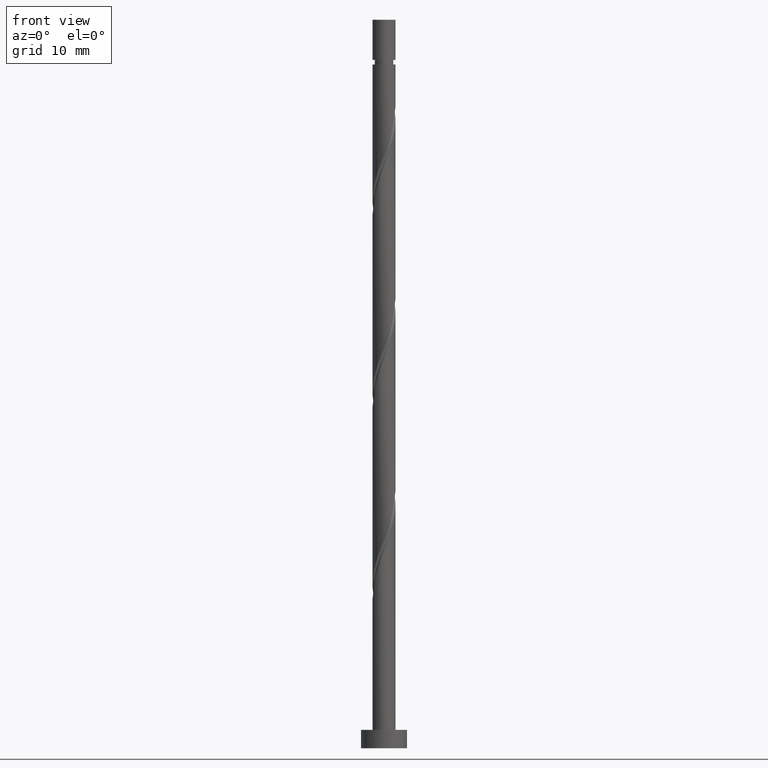
[diagram: clean part render]
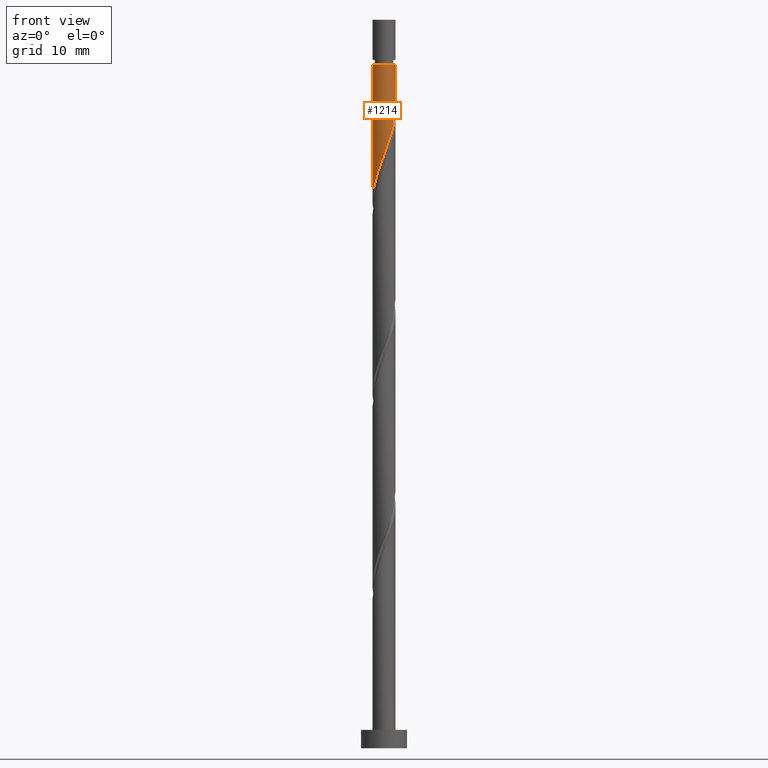
[diagram: same view with one face highlighted and labeled with its STEP entity id]
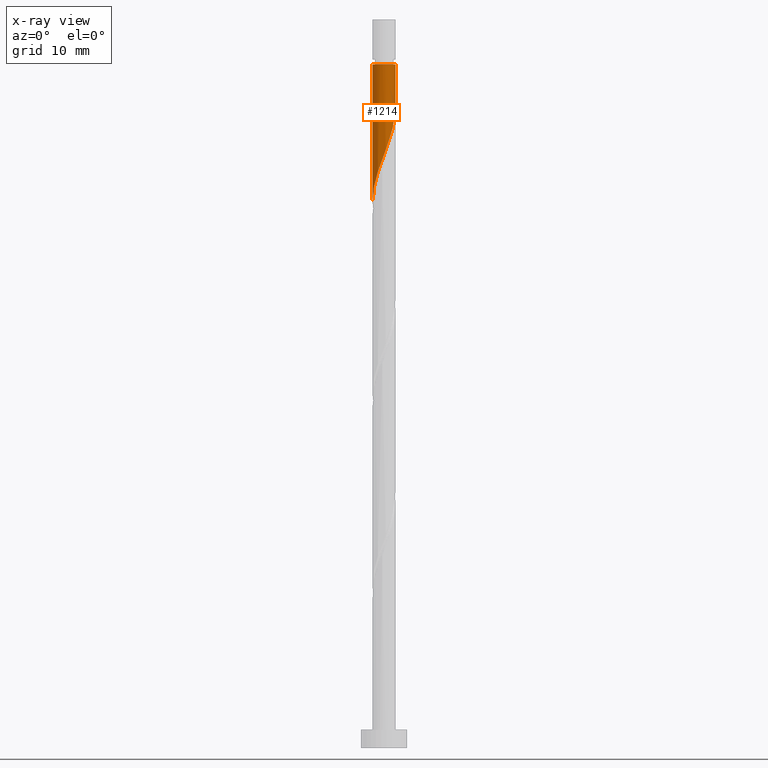
[diagram: x-ray of the same camera — body ghosted, the highlighted face saturated]
A machine part, front view. The second image highlights one B-rep face of the part: STEP entity #1214.
The next image is the same camera in x-ray: the body ghosted, the highlighted face saturated — about 0% of this face is hidden behind the body in this view.
In plain terms, the highlighted cylindrical surface (edge-blend (fillet) strip) has radius 1.25 mm, axis along (-0, -0, -1).
Its self-contained STEP definition (entity closure, byte-faithful):
#5 = CARTESIAN_POINT ( 'NONE',  ( 0.000000000000000000, 0.000000000000000000, 74.14834057756156938 ) ) ;
#22 = ORIENTED_EDGE ( 'NONE', *, *, #128, .F. ) ;
#57 = ORIENTED_EDGE ( 'NONE', *, *, #863, .F. ) ;
#63 = AXIS2_PLACEMENT_3D ( 'NONE', #486, #1331, #101 ) ;
#99 = VERTEX_POINT ( 'NONE', #940 ) ;
#101 = DIRECTION ( 'NONE',  ( -1.000000000000000000, 0.000000000000000000, 0.000000000000000000 ) ) ;
#128 = EDGE_CURVE ( 'NONE', #1133, #99, #613, .T. ) ;
#165 = VECTOR ( 'NONE', #1384, 1000.000000000000000 ) ;
#201 = CARTESIAN_POINT ( 'NONE',  ( 1.249999999999999778, -0.1256297269074000689, 69.27050511029065660 ) ) ;
#216 = CARTESIAN_POINT ( 'NONE',  ( 1.185602367910980393, -0.4427677986742116767, 68.41917391089489797 ) ) ;
#225 = CARTESIAN_POINT ( 'NONE',  ( -1.137255553546199227, -0.5187964976060721600, 60.60667391089489797 ) ) ;
#242 = LINE ( 'NONE', #1088, #1383 ) ;
#244 = CARTESIAN_POINT ( 'NONE',  ( -0.05472591987909793815, -1.264397632089018675, 64.25250724422822657 ) ) ;
#281 = EDGE_LOOP ( 'NONE', ( #57, #1363, #287, #22 ) ) ;
#287 = ORIENTED_EDGE ( 'NONE', *, *, #385, .T. ) ;
#351 = CARTESIAN_POINT ( 'NONE',  ( -0.4427677986742115657, -1.185602367910980393, 63.21084057756155516 ) ) ;
#371 = CIRCLE ( 'NONE', #1110, 1.250000000000002887 ) ;
#379 = DIRECTION ( 'NONE',  ( -1.000000000000000000, 0.000000000000000000, 0.000000000000000000 ) ) ;
#385 = EDGE_CURVE ( 'NONE', #1266, #99, #242, .T. ) ;
#406 = EDGE_CURVE ( 'NONE', #1274, #1266, #371, .T. ) ;
#486 = CARTESIAN_POINT ( 'NONE',  ( 0.000000000000000000, 0.000000000000000000, 79.00000000000000000 ) ) ;
#496 = DIRECTION ( 'NONE',  ( -0.000000000000000000, -0.000000000000000000, -1.000000000000000000 ) ) ;
#519 = CARTESIAN_POINT ( 'NONE',  ( -1.055086260630531791, -0.6989200819604575177, 61.12750724422822657 ) ) ;
#590 = CARTESIAN_POINT ( 'NONE',  ( -1.250000000000000000, -0.07121717180803825709, 59.37765410823910628 ) ) ;
#608 = CARTESIAN_POINT ( 'NONE',  ( -0.2487468592766548803, -1.224999999999999867, 63.73167391089491929 ) ) ;
#613 =( BOUNDED_CURVE ( )  B_SPLINE_CURVE ( 2, ( #821, #201, #697, #216, #1182, #1418, #948, #1512, #1425, #917, #1124, #244, #608, #351, #1369, #1196, #857, #519, #225, #1089, #888, #590, #730 ),
 .UNSPECIFIED., .F., .T. ) 
 B_SPLINE_CURVE_WITH_KNOTS ( ( 3, 2, 2, 2, 2, 2, 2, 2, 2, 2, 2, 3 ),
 ( 0.3045322023138550827, 0.3125000000000000000, 0.3250000000000000111, 0.3375000000000000222, 0.3499999999999999778, 0.3624999999999999889, 0.3750000000000000000, 0.3875000000000000111, 0.4000000000000000222, 0.4124999999999999778, 0.4249999999999999889, 0.4295322023138553602 ),
 .UNSPECIFIED. ) 
 CURVE ( )  GEOMETRIC_REPRESENTATION_ITEM ( )  RATIONAL_B_SPLINE_CURVE ( ( 0.9039174447099216358, 0.9019565955404509339, 0.9090909090908991796, 0.8978984914501155767, 0.9090909090908991796, 0.8978984914501155767, 0.9090909090908991796, 0.8978984914501155767, 0.9090909090908991796, 0.8978984914501155767, 0.9090909090908991796, 0.8978984914501155767, 0.9090909090908991796, 0.8978984914501155767, 0.9090909090908991796, 0.8978984914501155767, 0.9090909090908991796, 0.8978984914501155767, 0.9090909090908991796, 0.8978984914501155767, 0.9090909090908991796, 0.9050328050005636005, 0.9039174447099216358 ) ) 
 REPRESENTATION_ITEM ( '' )  );
#697 = CARTESIAN_POINT ( 'NONE',  ( 1.224999999999999867, -0.2487468592766549358, 68.94000724422824078 ) ) ;
#722 = FACE_OUTER_BOUND ( 'NONE', #281, .T. ) ;
#730 = CARTESIAN_POINT ( 'NONE',  ( -1.250000000000000222, 5.547448029786229546E-16, 59.18814301903181985 ) ) ;
#821 = CARTESIAN_POINT ( 'NONE',  ( 1.250000000000000222, -6.971792794190802184E-16, 69.60480968569848415 ) ) ;
#857 = CARTESIAN_POINT ( 'NONE',  ( -0.9212773705104868593, -0.8448360826724214956, 61.64834057756157648 ) ) ;
#863 = EDGE_CURVE ( 'NONE', #1274, #1133, #1136, .T. ) ;
#888 = CARTESIAN_POINT ( 'NONE',  ( -1.241911239275442780, -0.1419734966862943593, 59.56500724422822657 ) ) ;
#917 = CARTESIAN_POINT ( 'NONE',  ( 0.3386729132516865803, -1.219424846461866219, 65.29417391089489797 ) ) ;
#940 = CARTESIAN_POINT ( 'NONE',  ( -1.250000000000000000, 5.547448029786229546E-16, 59.18814301903181985 ) ) ;
#948 = CARTESIAN_POINT ( 'NONE',  ( 0.8448360826724214956, -0.9212773705104868593, 66.85667391089492639 ) ) ;
#1088 = CARTESIAN_POINT ( 'NONE',  ( -1.250000000000000000, 0.000000000000000000, 79.00000000000000000 ) ) ;
#1089 = CARTESIAN_POINT ( 'NONE',  ( -1.219424846461866219, -0.3386729132516866914, 60.08584057756156938 ) ) ;
#1110 = AXIS2_PLACEMENT_3D ( 'NONE', #5, #496, #379 ) ;
#1124 = CARTESIAN_POINT ( 'NONE',  ( 0.1419734966862943593, -1.241911239275442780, 64.77334057756159780 ) ) ;
#1133 = VERTEX_POINT ( 'NONE', #1215 ) ;
#1136 = LINE ( 'NONE', #1254, #165 ) ;
#1182 = CARTESIAN_POINT ( 'NONE',  ( 1.088177225647682933, -0.6151181395323265244, 67.89834057756156938 ) ) ;
#1195 = CARTESIAN_POINT ( 'NONE',  ( -1.250000000000002887, 0.000000000000000000, 74.14834057756156938 ) ) ;
#1196 = CARTESIAN_POINT ( 'NONE',  ( -0.7874684803904412611, -0.9907520833843852515, 62.16917391089488376 ) ) ;
#1214 = ADVANCED_FACE ( 'NONE', ( #722 ), #1443, .T. ) ;
#1215 = CARTESIAN_POINT ( 'NONE',  ( 1.250000000000000000, -6.971792794190802184E-16, 69.60480968569848415 ) ) ;
#1229 = CARTESIAN_POINT ( 'NONE',  ( 1.250000000000002887, 1.530808498934194775E-16, 74.14834057756156938 ) ) ;
#1254 = CARTESIAN_POINT ( 'NONE',  ( 1.250000000000000000, 1.530808498934191571E-16, 79.00000000000000000 ) ) ;
#1266 = VERTEX_POINT ( 'NONE', #1195 ) ;
#1274 = VERTEX_POINT ( 'NONE', #1229 ) ;
#1331 = DIRECTION ( 'NONE',  ( -0.000000000000000000, -0.000000000000000000, -1.000000000000000000 ) ) ;
#1363 = ORIENTED_EDGE ( 'NONE', *, *, #406, .T. ) ;
#1369 = CARTESIAN_POINT ( 'NONE',  ( -0.6151181395323265244, -1.088177225647682933, 62.69000724422824078 ) ) ;
#1383 = VECTOR ( 'NONE', #1564, 1000.000000000000000 ) ;
#1384 = DIRECTION ( 'NONE',  ( -0.000000000000000000, -0.000000000000000000, -1.000000000000000000 ) ) ;
#1418 = CARTESIAN_POINT ( 'NONE',  ( 0.9907520833843852515, -0.7874684803904414832, 67.37750724422822657 ) ) ;
#1425 = CARTESIAN_POINT ( 'NONE',  ( 0.5187964976060721600, -1.137255553546199227, 65.81500724422825499 ) ) ;
#1443 = CYLINDRICAL_SURFACE ( 'NONE', #63, 1.250000000000000000 ) ;
#1512 = CARTESIAN_POINT ( 'NONE',  ( 0.6989200819604575177, -1.055086260630531791, 66.33584057756155516 ) ) ;
#1564 = DIRECTION ( 'NONE',  ( -0.000000000000000000, -0.000000000000000000, -1.000000000000000000 ) ) ;